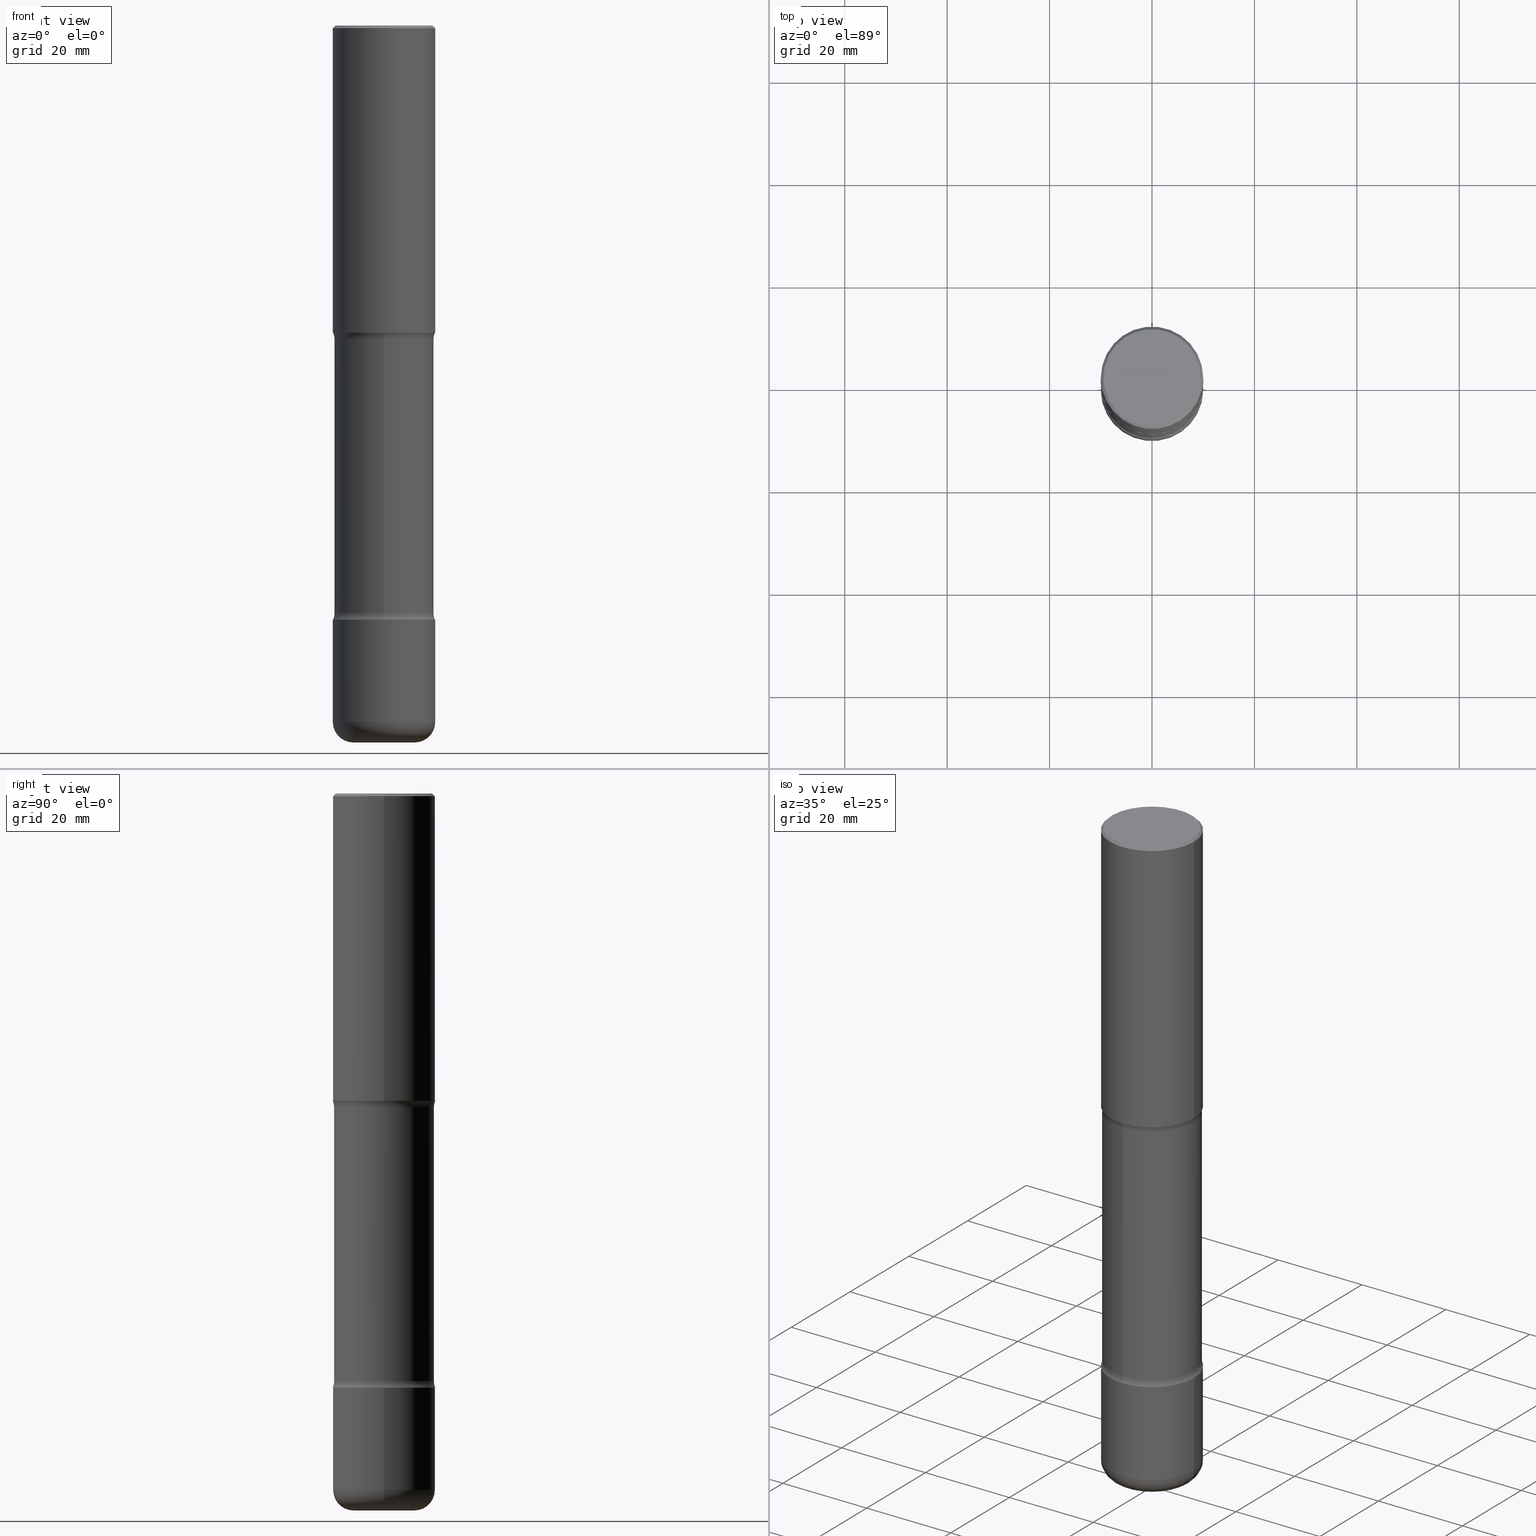
[diagram: canonical four-view strip — front | top / right | iso, engineering-drawing reading convention]
A machine part, canonical four-view strip (front | top / right | iso — engineering-drawing reading convention). The complete STEP part file that produces these views, byte-faithful:
ISO-10303-21;
HEADER;
FILE_DESCRIPTION (( 'STEP AP203' ),
    '1' );
FILE_NAME ('46840.STEP',
    '2024-03-02T05:50:54',
    ( '' ),
    ( '' ),
    'SwSTEP 2.0',
    'SolidWorks 2023',
    '' );
FILE_SCHEMA (( 'CONFIG_CONTROL_DESIGN' ));
ENDSEC;

DATA;
#1 = AXIS2_PLACEMENT_3D ( 'NONE', #249, #391, #31 ) ;
#2 = SECURITY_CLASSIFICATION ( '', '', #503 ) ;
#3 = ORIENTED_EDGE ( 'NONE', *, *, #149, .T. ) ;
#4 = EDGE_CURVE ( 'NONE', #308, #347, #443, .T. ) ;
#5 = DIRECTION ( 'NONE',  ( -2.438088387897960049E-29, 3.491481338843145188E-15, 1.000000000000000000 ) ) ;
#6 = ADVANCED_FACE ( 'NONE', ( #531 ), #315, .F. ) ;
#7 = AXIS2_PLACEMENT_3D ( 'NONE', #367, #325, #277 ) ;
#8 = ORIENTED_EDGE ( 'NONE', *, *, #165, .T. ) ;
#9 = DIRECTION ( 'NONE',  ( 6.982962677686265922E-15, 1.000000000000000000, -2.775563112689113540E-15 ) ) ;
#10 = DIRECTION ( 'NONE',  ( -1.000000000000000000, 6.982962677686265922E-15, -4.876176775795935793E-29 ) ) ;
#11 = ORIENTED_EDGE ( 'NONE', *, *, #24, .T. ) ;
#12 = DESIGN_CONTEXT ( 'detailed design', #429, 'design' ) ;
#13 = VECTOR ( 'NONE', #431, 39.37007874015748143 ) ;
#14 = CARTESIAN_POINT ( 'NONE',  ( 1.104200435858908498E-28, -1.578010528209585513E-14, -4.517443352317408234 ) ) ;
#16 = VERTEX_POINT ( 'NONE', #489 ) ;
#15 = CIRCLE ( 'NONE', #202, 0.3835000000000000075 ) ;
#17 = APPROVAL_PERSON_ORGANIZATION ( #276, #254, #366 ) ;
#18 = APPROVAL_DATE_TIME ( #497, #64 ) ;
#19 = DIRECTION ( 'NONE',  ( -1.000000000000000000, 6.982962677686265922E-15, 0.000000000000000000 ) ) ;
#20 = FACE_OUTER_BOUND ( 'NONE', #381, .T. ) ;
#21 = PRODUCT ( '46840', '46840', '', ( #332 ) ) ;
#22 = DIRECTION ( 'NONE',  ( -2.445468806185136597E-29, 3.491481338843145583E-15, 1.000000000000000000 ) ) ;
#23 = DIRECTION ( 'NONE',  ( -6.982962677686264344E-15, -1.000000000000000000, 0.000000000000000000 ) ) ;
#24 = EDGE_CURVE ( 'NONE', #440, #190, #467, .T. ) ;
#25 = AXIS2_PLACEMENT_3D ( 'NONE', #121, #198, #510 ) ;
#26 = APPROVAL_ROLE ( '' ) ;
#27 = FACE_OUTER_BOUND ( 'NONE', #521, .T. ) ;
#28 = DIRECTION ( 'NONE',  ( 6.982962677686265133E-15, 1.000000000000000000, -2.849385130288669478E-15 ) ) ;
#29 = CARTESIAN_POINT ( 'NONE',  ( -2.665989521933906951E-15, -0.3835000000000157727, -4.517443352317407346 ) ) ;
#30 = ORIENTED_EDGE ( 'NONE', *, *, #473, .T. ) ;
#31 = DIRECTION ( 'NONE',  ( 6.982962677686265133E-15, 1.000000000000000000, -3.339103073195795043E-15 ) ) ;
#32 = CIRCLE ( 'NONE', #212, 0.3835000000000000075 ) ;
#33 = CARTESIAN_POINT ( 'NONE',  ( -0.3937000000000001054, 2.797406750687515181E-15, -1.936584745033357016E-29 ) ) ;
#34 = EDGE_LOOP ( 'NONE', ( #396, #486 ) ) ;
#35 = DIRECTION ( 'NONE',  ( -2.445468806185136597E-29, 3.491481338843145583E-15, 1.000000000000000000 ) ) ;
#36 = ORIENTED_EDGE ( 'NONE', *, *, #143, .T. ) ;
#37 = CYLINDRICAL_SURFACE ( 'NONE', #86, 0.3937000000000001054 ) ;
#38 = VERTEX_POINT ( 'NONE', #317 ) ;
#39 = AXIS2_PLACEMENT_3D ( 'NONE', #117, #554, #241 ) ;
#40 = AXIS2_PLACEMENT_3D ( 'NONE', #286, #493, #69 ) ;
#41 = DIRECTION ( 'NONE',  ( 1.000000000000000000, -6.982962677686266711E-15, 4.876212485538975679E-29 ) ) ;
#42 = CARTESIAN_POINT ( 'NONE',  ( -2.087702828670439639E-46, 2.980686340760894400E-32, 8.537024980200822558E-18 ) ) ;
#43 = EDGE_CURVE ( 'NONE', #125, #156, #192, .T. ) ;
#44 = DIRECTION ( 'NONE',  ( 2.551873980375737716E-29, -3.339103073195795043E-15, -1.000000000000000000 ) ) ;
#45 = EDGE_CURVE ( 'NONE', #278, #451, #476, .T. ) ;
#46 = DIRECTION ( 'NONE',  ( 1.000000000000000000, -6.982962677686265922E-15, 4.876176775795935793E-29 ) ) ;
#47 = VECTOR ( 'NONE', #191, 39.37007874015748143 ) ;
#48 = ORIENTED_EDGE ( 'NONE', *, *, #345, .F. ) ;
#49 = AXIS2_PLACEMENT_3D ( 'NONE', #158, #342, #269 ) ;
#50 = ORIENTED_EDGE ( 'NONE', *, *, #223, .T. ) ;
#51 = DIRECTION ( 'NONE',  ( -1.000000000000000000, 6.982962677686265922E-15, -4.883557194083112340E-29 ) ) ;
#52 = PERSON_AND_ORGANIZATION ( #515, #282 ) ;
#53 = DIRECTION ( 'NONE',  ( 2.551873980375737716E-29, -3.339103073195795043E-15, -1.000000000000000000 ) ) ;
#54 = ORIENTED_EDGE ( 'NONE', *, *, #360, .F. ) ;
#55 = APPROVAL_STATUS ( 'not_yet_approved' ) ;
#56 = AXIS2_PLACEMENT_3D ( 'NONE', #91, #224, #401 ) ;
#57 = DIRECTION ( 'NONE',  ( 6.982962677686265922E-15, 1.000000000000000000, -2.849385130288670661E-15 ) ) ;
#59 = DIRECTION ( 'NONE',  ( -0.7071067811865469066, 2.468850131082250355E-15, -0.7071067811865481278 ) ) ;
#58 = CIRCLE ( 'NONE', #390, 0.3835000000000002851 ) ;
#60 = AXIS2_PLACEMENT_3D ( 'NONE', #487, #392, #268 ) ;
#61 = SHAPE_DEFINITION_REPRESENTATION ( #327, #400 ) ;
#62 = DIRECTION ( 'NONE',  ( 1.000000000000000000, -6.982962677686266711E-15, 4.876176775795935793E-29 ) ) ;
#63 = LINE ( 'NONE', #465, #460 ) ;
#64 = APPROVAL ( #508, 'UNSPECIFIED' ) ;
#65 = CARTESIAN_POINT ( 'NONE',  ( 1.309377362895707575E-28, -1.869443853256785386E-14, -5.354300000000000281 ) ) ;
#66 = ADVANCED_FACE ( 'NONE', ( #357 ), #409, .F. ) ;
#67 = PERSON_AND_ORGANIZATION_ROLE ( 'design_supplier' ) ;
#68 = FACE_OUTER_BOUND ( 'NONE', #275, .T. ) ;
#69 = DIRECTION ( 'NONE',  ( 1.000000000000000000, -6.982962677686272233E-15, 0.000000000000000000 ) ) ;
#70 = DIRECTION ( 'NONE',  ( 6.982962677686265922E-15, 1.000000000000000000, -2.775563112689113540E-15 ) ) ;
#71 = APPLICATION_PROTOCOL_DEFINITION ( 'international standard', 'config_control_design', 1994, #429 ) ;
#72 = FACE_OUTER_BOUND ( 'NONE', #449, .T. ) ;
#73 = AXIS2_PLACEMENT_3D ( 'NONE', #42, #175, #395 ) ;
#74 = CIRCLE ( 'NONE', #506, 0.3937000000000000499 ) ;
#75 = FACE_OUTER_BOUND ( 'NONE', #559, .T. ) ;
#76 = CARTESIAN_POINT ( 'NONE',  ( 0.3937000000000000499, -2.770807688499515734E-15, -0.02000000000000008715 ) ) ;
#77 = CARTESIAN_POINT ( 'NONE',  ( 4.890937612370294178E-31, -6.982962677686321191E-17, -0.02000000000000008715 ) ) ;
#78 = ORIENTED_EDGE ( 'NONE', *, *, #239, .F. ) ;
#79 = AXIS2_PLACEMENT_3D ( 'NONE', #408, #404, #10 ) ;
#80 = LINE ( 'NONE', #383, #13 ) ;
#81 = ORIENTED_EDGE ( 'NONE', *, *, #4, .F. ) ;
#82 = ADVANCED_FACE ( 'NONE', ( #319 ), #92, .F. ) ;
#83 = EDGE_CURVE ( 'NONE', #451, #533, #273, .T. ) ;
#84 = ORIENTED_EDGE ( 'NONE', *, *, #267, .T. ) ;
#85 = AXIS2_PLACEMENT_3D ( 'NONE', #514, #115, #545 ) ;
#86 = AXIS2_PLACEMENT_3D ( 'NONE', #448, #179, #62 ) ;
#87 = CARTESIAN_POINT ( 'NONE',  ( 0.000000000000000000, 0.000000000000000000, 0.000000000000000000 ) ) ;
#88 = VERTEX_POINT ( 'NONE', #516 ) ;
#89 = EDGE_LOOP ( 'NONE', ( #560, #299 ) ) ;
#90 = PRODUCT_RELATED_PRODUCT_CATEGORY ( 'detail', '', ( #21 ) ) ;
#91 = CARTESIAN_POINT ( 'NONE',  ( -0.2362000000000005484, -1.701613659070249273E-14, -5.354300000000000281 ) ) ;
#92 = TOROIDAL_SURFACE ( 'NONE', #352, 0.5085000000000003961, 0.1250000000000001110 ) ;
#93 = CARTESIAN_POINT ( 'NONE',  ( 0.3937000000000001054, -2.749192406205084005E-15, 1.919750796630860452E-29 ) ) ;
#94 = CIRCLE ( 'NONE', #281, 0.3937000000000004940 ) ;
#95 = DIRECTION ( 'NONE',  ( -2.445468806185136597E-29, 3.491481338843145583E-15, 1.000000000000000000 ) ) ;
#96 = ORIENTED_EDGE ( 'NONE', *, *, #143, .F. ) ;
#97 = EDGE_CURVE ( 'NONE', #161, #533, #167, .T. ) ;
#98 = DIRECTION ( 'NONE',  ( 2.551873980375737716E-29, -3.339103073195795043E-15, -1.000000000000000000 ) ) ;
#99 = ORIENTED_EDGE ( 'NONE', *, *, #171, .T. ) ;
#100 = ORIENTED_EDGE ( 'NONE', *, *, #473, .F. ) ;
#101 = COORDINATED_UNIVERSAL_TIME_OFFSET ( 5, 0, .BEHIND. ) ;
#102 = CARTESIAN_POINT ( 'NONE',  ( 2.749192406205143170E-15, 0.3936999999999921673, -2.362200000000001854 ) ) ;
#103 = DATE_TIME_ROLE ( 'classification_date' ) ;
#104 = CLOSED_SHELL ( 'NONE', ( #491, #244, #124, #82, #6, #291, #414, #204 ) ) ;
#105 = ORIENTED_EDGE ( 'NONE', *, *, #382, .F. ) ;
#106 = AXIS2_PLACEMENT_3D ( 'NONE', #338, #517, #41 ) ;
#107 =( GEOMETRIC_REPRESENTATION_CONTEXT ( 3 ) GLOBAL_UNCERTAINTY_ASSIGNED_CONTEXT ( ( #490 ) ) GLOBAL_UNIT_ASSIGNED_CONTEXT ( ( #334, #368, #255 ) ) REPRESENTATION_CONTEXT ( 'NONE', 'WORKASPACE' ) );
#108 = PERSON_AND_ORGANIZATION ( #515, #282 ) ;
#109 = CARTESIAN_POINT ( 'NONE',  ( 1.309377362895707575E-28, -1.869443853256785386E-14, -5.354300000000000281 ) ) ;
#110 = DATE_AND_TIME ( #543, #311 ) ;
#111 = MANIFOLD_SOLID_BREP ( 'Body-Move/Copy2[1]', #292 ) ;
#112 = AXIS2_PLACEMENT_3D ( 'NONE', #153, #283, #426 ) ;
#113 = CIRCLE ( 'NONE', #445, 0.3835000000000002851 ) ;
#114 = DIRECTION ( 'NONE',  ( 1.000000000000000000, -6.982962677686266711E-15, 4.876176775795935793E-29 ) ) ;
#115 = DIRECTION ( 'NONE',  ( -2.445468806185136597E-29, 3.491481338843145583E-15, 1.000000000000000000 ) ) ;
#116 = EDGE_CURVE ( 'NONE', #347, #405, #520, .T. ) ;
#117 = CARTESIAN_POINT ( 'NONE',  ( 5.659176195875929184E-29, -8.761735180288824400E-15, -2.411656647682593135 ) ) ;
#118 = EDGE_LOOP ( 'NONE', ( #96, #100, #220, #293 ) ) ;
#119 = EDGE_LOOP ( 'NONE', ( #78, #84, #135, #105 ) ) ;
#120 = AXIS2_PLACEMENT_3D ( 'NONE', #450, #44, #9 ) ;
#121 = CARTESIAN_POINT ( 'NONE',  ( -3.488563231866714142E-15, -0.5085000000000159392, -4.517443352317407346 ) ) ;
#122 = ORIENTED_EDGE ( 'NONE', *, *, #187, .F. ) ;
#123 = ORIENTED_EDGE ( 'NONE', *, *, #206, .F. ) ;
#124 = ADVANCED_FACE ( 'NONE', ( #413 ), #257, .F. ) ;
#125 = VERTEX_POINT ( 'NONE', #551 ) ;
#126 = AXIS2_PLACEMENT_3D ( 'NONE', #363, #266, #170 ) ;
#127 = CARTESIAN_POINT ( 'NONE',  ( 2.609533152651357409E-15, 0.3736999999999999766, -1.300498063835583011E-15 ) ) ;
#128 = VECTOR ( 'NONE', #250, 39.37007874015748143 ) ;
#129 = APPROVAL_PERSON_ORGANIZATION ( #411, #64, #456 ) ;
#130 = ORIENTED_EDGE ( 'NONE', *, *, #116, .F. ) ;
#131 = ADVANCED_FACE ( 'NONE', ( #328 ), #301, .T. ) ;
#132 = EDGE_LOOP ( 'NONE', ( #123, #394, #527, #494 ) ) ;
#133 = CARTESIAN_POINT ( 'NONE',  ( 5.668302058810330557E-29, -8.748666425154899227E-15, -2.411656647682593135 ) ) ;
#134 = DIRECTION ( 'NONE',  ( 6.982962677686265133E-15, 1.000000000000000000, -3.339103073195795043E-15 ) ) ;
#135 = ORIENTED_EDGE ( 'NONE', *, *, #351, .T. ) ;
#136 = CIRCLE ( 'NONE', #484, 0.2362000000000005762 ) ;
#137 = DIRECTION ( 'NONE',  ( 1.000000000000000000, -6.982962677686265922E-15, 0.000000000000000000 ) ) ;
#138 = CARTESIAN_POINT ( 'NONE',  ( 0.3937000000000004940, -2.749192406205086766E-15, 1.919750796630862414E-29 ) ) ;
#139 = COORDINATED_UNIVERSAL_TIME_OFFSET ( 5, 0, .BEHIND. ) ;
#140 = CARTESIAN_POINT ( 'NONE',  ( 1.116821149096690103E-28, -1.594524612636276117E-14, -4.566900000000000404 ) ) ;
#141 = PERSON_AND_ORGANIZATION_ROLE ( 'creator' ) ;
#142 = PERSON_AND_ORGANIZATION ( #515, #282 ) ;
#143 = EDGE_CURVE ( 'NONE', #252, #88, #420, .T. ) ;
#144 = CARTESIAN_POINT ( 'NONE',  ( 4.890937612370294178E-31, -6.982962677686321191E-17, -0.02000000000000008715 ) ) ;
#145 = AXIS2_PLACEMENT_3D ( 'NONE', #127, #162, #482 ) ;
#146 = LOCAL_TIME ( 0, 50, 54.00000000000000000, #326 ) ;
#147 = DATE_AND_TIME ( #234, #213 ) ;
#148 = VERTEX_POINT ( 'NONE', #76 ) ;
#149 = EDGE_CURVE ( 'NONE', #156, #161, #80, .T. ) ;
#150 = CARTESIAN_POINT ( 'NONE',  ( -0.3937000000000004385, -1.452243557877779036E-14, -4.566900000000000404 ) ) ;
#151 = AXIS2_PLACEMENT_3D ( 'NONE', #246, #349, #428 ) ;
#152 = DIMENSIONAL_EXPONENTS ( 1.000000000000000000, 0.000000000000000000, 0.000000000000000000, 0.000000000000000000, 0.000000000000000000, 0.000000000000000000, 0.000000000000000000 ) ;
#153 = CARTESIAN_POINT ( 'NONE',  ( -3.488563231866769362E-15, -0.5085000000000091669, -2.411656647682591359 ) ) ;
#154 = DIRECTION ( 'NONE',  ( 6.982962677686265133E-15, 1.000000000000000000, -2.849385130288669478E-15 ) ) ;
#155 = ORIENTED_EDGE ( 'NONE', *, *, #265, .F. ) ;
#156 = VERTEX_POINT ( 'NONE', #295 ) ;
#157 = EDGE_CURVE ( 'NONE', #38, #405, #195, .T. ) ;
#158 = CARTESIAN_POINT ( 'NONE',  ( 1.309377362895707575E-28, -1.869443853256785386E-14, -5.354300000000000281 ) ) ;
#159 = AXIS2_PLACEMENT_3D ( 'NONE', #505, #22, #114 ) ;
#160 = CONICAL_SURFACE ( 'NONE', #552, 0.3937000000000000499, 0.7853981633974473908 ) ;
#161 = VERTEX_POINT ( 'NONE', #150 ) ;
#162 = DIRECTION ( 'NONE',  ( 2.438088387897960049E-29, -3.491481338843145188E-15, -1.000000000000000000 ) ) ;
#163 = CYLINDRICAL_SURFACE ( 'NONE', #194, 0.3937000000000004940 ) ;
#164 = VERTEX_POINT ( 'NONE', #29 ) ;
#165 = EDGE_CURVE ( 'NONE', #308, #148, #207, .T. ) ;
#166 = ORIENTED_EDGE ( 'NONE', *, *, #206, .T. ) ;
#167 = CIRCLE ( 'NONE', #85, 0.3937000000000004385 ) ;
#168 = AXIS2_PLACEMENT_3D ( 'NONE', #418, #51, #23 ) ;
#169 = CC_DESIGN_APPROVAL ( #288, ( #2 ) ) ;
#170 = DIRECTION ( 'NONE',  ( 6.982962677686265922E-15, 1.000000000000000000, -3.339103073195795043E-15 ) ) ;
#171 = EDGE_CURVE ( 'NONE', #533, #161, #398, .T. ) ;
#172 = ADVANCED_FACE ( 'NONE', ( #378 ), #193, .T. ) ;
#173 = CARTESIAN_POINT ( 'NONE',  ( 0.2362000000000005484, -2.034381431703735669E-14, -5.354300000000000281 ) ) ;
#174 = ORIENTED_EDGE ( 'NONE', *, *, #504, .F. ) ;
#175 = DIRECTION ( 'NONE',  ( -2.445468806185136597E-29, 3.491481338843145583E-15, 1.000000000000000000 ) ) ;
#176 = VECTOR ( 'NONE', #59, 39.37007874015748143 ) ;
#177 = APPROVAL_DATE_TIME ( #110, #254 ) ;
#178 = CIRCLE ( 'NONE', #106, 0.3736999999999999766 ) ;
#179 = DIRECTION ( 'NONE',  ( -2.445468806185136597E-29, 3.491481338843145583E-15, 1.000000000000000000 ) ) ;
#180 = AXIS2_PLACEMENT_3D ( 'NONE', #309, #380, #154 ) ;
#181 = DIRECTION ( 'NONE',  ( -2.445468806185136597E-29, 3.491481338843145583E-15, 1.000000000000000000 ) ) ;
#182 = LOCAL_TIME ( 0, 50, 54.00000000000000000, #101 ) ;
#183 = VERTEX_POINT ( 'NONE', #199 ) ;
#184 = PERSON_AND_ORGANIZATION_ROLE ( 'classification_officer' ) ;
#185 = CARTESIAN_POINT ( 'NONE',  ( 5.776686413970530874E-29, -8.247577218615279626E-15, -2.362200000000000077 ) ) ;
#186 = PRODUCT_DEFINITION ( 'UNKNOWN', '', #362, #12 ) ;
#187 = EDGE_CURVE ( 'NONE', #405, #148, #468, .T. ) ;
#188 = PERSON_AND_ORGANIZATION ( #515, #282 ) ;
#189 = CARTESIAN_POINT ( 'NONE',  ( 2.677966186892741486E-15, 0.3834999999999915699, -2.411656647682594468 ) ) ;
#190 = VERTEX_POINT ( 'NONE', #302 ) ;
#191 = DIRECTION ( 'NONE',  ( -2.445468806185136877E-29, 3.491481338843145188E-15, 1.000000000000000000 ) ) ;
#192 = CIRCLE ( 'NONE', #56, 0.1574999999999992795 ) ;
#193 = TOROIDAL_SURFACE ( 'NONE', #495, 0.2362000000000005484, 0.1574999999999992517 ) ;
#194 = AXIS2_PLACEMENT_3D ( 'NONE', #87, #399, #386 ) ;
#195 = LINE ( 'NONE', #33, #247 ) ;
#196 = DIRECTION ( 'NONE',  ( -2.445468806185136597E-29, 3.491481338843145583E-15, 1.000000000000000000 ) ) ;
#197 = ORIENTED_EDGE ( 'NONE', *, *, #267, .F. ) ;
#198 = DIRECTION ( 'NONE',  ( 1.000000000000000000, -6.860497997771530774E-15, 4.842664975176989819E-29 ) ) ;
#199 = CARTESIAN_POINT ( 'NONE',  ( 2.677966186892793550E-15, 0.3834999999999842424, -4.517443352317409122 ) ) ;
#200 = ORIENTED_EDGE ( 'NONE', *, *, #239, .T. ) ;
#201 = DIRECTION ( 'NONE',  ( 2.551873980375737716E-29, -3.339103073195795043E-15, -1.000000000000000000 ) ) ;
#202 = AXIS2_PLACEMENT_3D ( 'NONE', #549, #475, #553 ) ;
#203 = CC_DESIGN_PERSON_AND_ORGANIZATION_ASSIGNMENT ( #52, #141, ( #186 ) ) ;
#204 = ADVANCED_FACE ( 'NONE', ( #526 ), #375, .T. ) ;
#205 = CC_DESIGN_SECURITY_CLASSIFICATION ( #2, ( #362 ) ) ;
#206 = EDGE_CURVE ( 'NONE', #252, #164, #483, .T. ) ;
#207 = LINE ( 'NONE', #558, #128 ) ;
#208 = EDGE_LOOP ( 'NONE', ( #350, #36, #479, #48 ) ) ;
#209 = DIRECTION ( 'NONE',  ( 1.000000000000000000, -6.982962677686270655E-15, 0.000000000000000000 ) ) ;
#210 = ORIENTED_EDGE ( 'NONE', *, *, #43, .F. ) ;
#211 = AXIS2_PLACEMENT_3D ( 'NONE', #542, #534, #324 ) ;
#212 = AXIS2_PLACEMENT_3D ( 'NONE', #14, #98, #57 ) ;
#213 = LOCAL_TIME ( 0, 50, 54.00000000000000000, #285 ) ;
#214 = DIRECTION ( 'NONE',  ( 1.000000000000000000, -6.982962677686261977E-15, 4.883557194083110659E-29 ) ) ;
#215 = ORIENTED_EDGE ( 'NONE', *, *, #306, .F. ) ;
#216 = PLANE ( 'NONE',  #145 ) ;
#217 = FACE_OUTER_BOUND ( 'NONE', #34, .T. ) ;
#218 = ORIENTED_EDGE ( 'NONE', *, *, #43, .T. ) ;
#219 = ORIENTED_EDGE ( 'NONE', *, *, #306, .T. ) ;
#220 = ORIENTED_EDGE ( 'NONE', *, *, #345, .T. ) ;
#221 = CC_DESIGN_DATE_AND_TIME_ASSIGNMENT ( #147, #103, ( #2 ) ) ;
#222 = AXIS2_PLACEMENT_3D ( 'NONE', #173, #454, #230 ) ;
#223 = EDGE_CURVE ( 'NONE', #347, #308, #178, .T. ) ;
#224 = DIRECTION ( 'NONE',  ( 7.105427357601001859E-15, 1.000000000000000000, -3.491481338843145583E-15 ) ) ;
#225 = PLANE ( 'NONE',  #79 ) ;
#226 = EDGE_LOOP ( 'NONE', ( #210, #481, #519, #477 ) ) ;
#227 = CARTESIAN_POINT ( 'NONE',  ( 0.000000000000000000, 0.000000000000000000, 0.000000000000000000 ) ) ;
#228 = FACE_OUTER_BOUND ( 'NONE', #119, .T. ) ;
#229 = CARTESIAN_POINT ( 'NONE',  ( 1.104726680180063437E-28, -1.577256916389725369E-14, -4.517443352317409122 ) ) ;
#230 = DIRECTION ( 'NONE',  ( 1.000000000000000000, -6.982962677686269077E-15, 0.000000000000000000 ) ) ;
#231 = DATE_TIME_ROLE ( 'creation_date' ) ;
#232 = AXIS2_PLACEMENT_3D ( 'NONE', #425, #512, #28 ) ;
#233 = DIRECTION ( 'NONE',  ( -2.445468806185136597E-29, 3.491481338843145583E-15, 1.000000000000000000 ) ) ;
#234 = CALENDAR_DATE ( 2024, 2, 3 ) ;
#235 = DIRECTION ( 'NONE',  ( 2.551873980375737716E-29, -3.339103073195795043E-15, -1.000000000000000000 ) ) ;
#236 = ORIENTED_EDGE ( 'NONE', *, *, #511, .T. ) ;
#237 = CARTESIAN_POINT ( 'NONE',  ( 4.890937612370294178E-31, -6.982962677686321191E-17, -0.02000000000000008715 ) ) ;
#238 = CARTESIAN_POINT ( 'NONE',  ( 1.347893496593123422E-28, -1.924434684343564562E-14, -5.511799999999999145 ) ) ;
#239 = EDGE_CURVE ( 'NONE', #190, #440, #432, .T. ) ;
#240 = TOROIDAL_SURFACE ( 'NONE', #1, 0.5085000000000001741, 0.1249999999999999584 ) ;
#241 = DIRECTION ( 'NONE',  ( 6.982962677686265133E-15, 1.000000000000000000, -3.339103073195795043E-15 ) ) ;
#242 = CYLINDRICAL_SURFACE ( 'NONE', #372, 0.3937000000000001054 ) ;
#243 = DIRECTION ( 'NONE',  ( -2.445468806185136877E-29, 3.491481338843145188E-15, 1.000000000000000000 ) ) ;
#244 = ADVANCED_FACE ( 'NONE', ( #228 ), #240, .F. ) ;
#245 = FACE_OUTER_BOUND ( 'NONE', #262, .T. ) ;
#246 = CARTESIAN_POINT ( 'NONE',  ( 4.890937612370294178E-31, -6.982962677686321191E-17, -0.02000000000000008715 ) ) ;
#247 = VECTOR ( 'NONE', #243, 39.37007874015748143 ) ;
#248 = TOROIDAL_SURFACE ( 'NONE', #548, 0.5085000000000001741, 0.1249999999999999584 ) ;
#249 = CARTESIAN_POINT ( 'NONE',  ( 1.104726680180063437E-28, -1.577256916389725369E-14, -4.517443352317409122 ) ) ;
#250 = DIRECTION ( 'NONE',  ( 0.7071067811865469066, -7.319954787623254468E-15, -0.7071067811865481278 ) ) ;
#251 = ORIENTED_EDGE ( 'NONE', *, *, #223, .F. ) ;
#252 = VERTEX_POINT ( 'NONE', #556 ) ;
#253 = ORIENTED_EDGE ( 'NONE', *, *, #360, .T. ) ;
#254 = APPROVAL ( #538, 'UNSPECIFIED' ) ;
#255 =( NAMED_UNIT ( * ) SI_UNIT ( $, .STERADIAN. ) SOLID_ANGLE_UNIT ( ) );
#256 = FACE_OUTER_BOUND ( 'NONE', #470, .T. ) ;
#258 = ORIENTED_EDGE ( 'NONE', *, *, #83, .F. ) ;
#257 = TOROIDAL_SURFACE ( 'NONE', #39, 0.5085000000000003961, 0.1250000000000001110 ) ;
#259 = AXIS2_PLACEMENT_3D ( 'NONE', #346, #436, #340 ) ;
#260 = AXIS2_PLACEMENT_3D ( 'NONE', #227, #284, #518 ) ;
#261 = CARTESIAN_POINT ( 'NONE',  ( 5.668302058810330557E-29, -8.748666425154899227E-15, -2.411656647682593135 ) ) ;
#262 = EDGE_LOOP ( 'NONE', ( #469, #335, #337, #122 ) ) ;
#263 = DIRECTION ( 'NONE',  ( 1.000000000000000000, -6.982962677686266711E-15, 4.876176775795935793E-29 ) ) ;
#264 = CC_DESIGN_DATE_AND_TIME_ASSIGNMENT ( #462, #231, ( #186 ) ) ;
#265 = EDGE_CURVE ( 'NONE', #88, #355, #344, .T. ) ;
#266 = DIRECTION ( 'NONE',  ( 2.551873980375737156E-29, -3.339103073195795043E-15, -1.000000000000000000 ) ) ;
#267 = EDGE_CURVE ( 'NONE', #190, #164, #271, .T. ) ;
#268 = DIRECTION ( 'NONE',  ( 6.982962677686265922E-15, 1.000000000000000000, -3.469453890861389657E-15 ) ) ;
#269 = DIRECTION ( 'NONE',  ( 1.000000000000000000, -6.982962677686269866E-15, 0.000000000000000000 ) ) ;
#270 = ORIENTED_EDGE ( 'NONE', *, *, #187, .T. ) ;
#271 = CIRCLE ( 'NONE', #25, 0.1249999999999999584 ) ;
#272 = DIRECTION ( 'NONE',  ( 1.000000000000000000, -6.982962677686266711E-15, 0.000000000000000000 ) ) ;
#273 = LINE ( 'NONE', #138, #430 ) ;
#274 = DIRECTION ( 'NONE',  ( -6.982962677686265133E-15, -1.000000000000000000, 0.000000000000000000 ) ) ;
#275 = EDGE_LOOP ( 'NONE', ( #525, #251, #455, #270 ) ) ;
#276 = PERSON_AND_ORGANIZATION ( #515, #282 ) ;
#277 = DIRECTION ( 'NONE',  ( -6.982962677686265922E-15, -1.000000000000000000, 3.339103073195795043E-15 ) ) ;
#278 = VERTEX_POINT ( 'NONE', #424 ) ;
#279 = APPLICATION_CONTEXT ( 'configuration controlled 3d designs of mechanical parts and assemblies' ) ;
#280 = PERSON_AND_ORGANIZATION ( #515, #282 ) ;
#281 = AXIS2_PLACEMENT_3D ( 'NONE', #109, #181, #453 ) ;
#282 = ORGANIZATION ( 'UNSPECIFIED', 'UNSPECIFIED', '' ) ;
#283 = DIRECTION ( 'NONE',  ( 1.000000000000000000, -6.860497997771530774E-15, 4.842664975176989819E-29 ) ) ;
#284 = DIRECTION ( 'NONE',  ( 0.000000000000000000, 0.000000000000000000, 1.000000000000000000 ) ) ;
#285 = COORDINATED_UNIVERSAL_TIME_OFFSET ( 5, 0, .BEHIND. ) ;
#286 = CARTESIAN_POINT ( 'NONE',  ( 1.347893496593123422E-28, -1.924434684343564562E-14, -5.511799999999999145 ) ) ;
#287 = EDGE_LOOP ( 'NONE', ( #99, #485 ) ) ;
#288 = APPROVAL ( #55, 'UNSPECIFIED' ) ;
#289 = ADVANCED_FACE ( 'NONE', ( #27 ), #216, .F. ) ;
#290 = COORDINATED_UNIVERSAL_TIME_OFFSET ( 5, 0, .BEHIND. ) ;
#291 = ADVANCED_FACE ( 'NONE', ( #544 ), #463, .F. ) ;
#292 = CLOSED_SHELL ( 'NONE', ( #550, #172, #416, #437, #131, #66 ) ) ;
#293 = ORIENTED_EDGE ( 'NONE', *, *, #504, .T. ) ;
#294 = CIRCLE ( 'NONE', #40, 0.2362000000000005762 ) ;
#295 = CARTESIAN_POINT ( 'NONE',  ( -0.3937000000000001609, -1.589703178188033670E-14, -5.354300000000000281 ) ) ;
#296 = DIRECTION ( 'NONE',  ( 1.000000000000000000, -6.982962677686261977E-15, 4.883557194083110659E-29 ) ) ;
#297 = FACE_OUTER_BOUND ( 'NONE', #446, .T. ) ;
#298 = EDGE_CURVE ( 'NONE', #353, #183, #63, .T. ) ;
#299 = ORIENTED_EDGE ( 'NONE', *, *, #403, .F. ) ;
#300 = DIRECTION ( 'NONE',  ( 2.445468806185136597E-29, -3.491481338843145583E-15, -1.000000000000000000 ) ) ;
#301 = CYLINDRICAL_SURFACE ( 'NONE', #159, 0.3937000000000004940 ) ;
#302 = CARTESIAN_POINT ( 'NONE',  ( -2.700978061722541995E-15, -0.3937000000000162037, -4.566899999999999515 ) ) ;
#303 = VECTOR ( 'NONE', #201, 39.37007874015748143 ) ;
#304 = ORIENTED_EDGE ( 'NONE', *, *, #149, .F. ) ;
#305 = ORIENTED_EDGE ( 'NONE', *, *, #83, .T. ) ;
#306 = EDGE_CURVE ( 'NONE', #451, #156, #94, .T. ) ;
#307 = DIRECTION ( 'NONE',  ( -2.445468806185136597E-29, 3.491481338843145583E-15, 1.000000000000000000 ) ) ;
#308 = VERTEX_POINT ( 'NONE', #535 ) ;
#309 = CARTESIAN_POINT ( 'NONE',  ( 1.357947721502393649E-28, -1.910036462022546845E-14, -5.511800000000000033 ) ) ;
#310 = ORIENTED_EDGE ( 'NONE', *, *, #157, .T. ) ;
#311 = LOCAL_TIME ( 0, 50, 54.00000000000000000, #139 ) ;
#312 = CARTESIAN_POINT ( 'NONE',  ( 5.776686413970530874E-29, -8.247577218615279626E-15, -2.362200000000000077 ) ) ;
#313 = CC_DESIGN_PERSON_AND_ORGANIZATION_ASSIGNMENT ( #142, #322, ( #21 ) ) ;
#314 = EDGE_CURVE ( 'NONE', #16, #38, #530, .T. ) ;
#315 = PLANE ( 'NONE',  #126 ) ;
#316 = DIRECTION ( 'NONE',  ( 6.982962677686265133E-15, 1.000000000000000000, -3.561731412860835763E-15 ) ) ;
#317 = CARTESIAN_POINT ( 'NONE',  ( -0.3937000000000002720, -1.361296672008554112E-15, -2.362200000000000077 ) ) ;
#318 = CARTESIAN_POINT ( 'NONE',  ( 3.550836521603578467E-15, 0.5084999999999844089, -4.517443352317410010 ) ) ;
#319 = FACE_OUTER_BOUND ( 'NONE', #118, .T. ) ;
#320 = AXIS2_PLACEMENT_3D ( 'NONE', #540, #458, #501 ) ;
#321 = CC_DESIGN_APPROVAL ( #254, ( #186 ) ) ;
#322 = PERSON_AND_ORGANIZATION_ROLE ( 'design_owner' ) ;
#323 = CARTESIAN_POINT ( 'NONE',  ( 2.749192406205196813E-15, 0.3936999999999843958, -4.566900000000001292 ) ) ;
#324 = DIRECTION ( 'NONE',  ( -1.000000000000000000, 6.982962677686265922E-15, -4.876176775795935793E-29 ) ) ;
#325 = DIRECTION ( 'NONE',  ( -2.551873980375737156E-29, 3.339103073195795043E-15, 1.000000000000000000 ) ) ;
#326 = COORDINATED_UNIVERSAL_TIME_OFFSET ( 5, 0, .BEHIND. ) ;
#327 = PRODUCT_DEFINITION_SHAPE ( 'NONE', 'NONE',  #186 ) ;
#328 = FACE_OUTER_BOUND ( 'NONE', #439, .T. ) ;
#329 = AXIS2_PLACEMENT_3D ( 'NONE', #185, #95, #272 ) ;
#330 = CC_DESIGN_PERSON_AND_ORGANIZATION_ASSIGNMENT ( #108, #184, ( #2 ) ) ;
#331 = DIRECTION ( 'NONE',  ( -1.000000000000000000, 6.982962677686265922E-15, -4.883557194083112340E-29 ) ) ;
#332 = MECHANICAL_CONTEXT ( 'NONE', #279, 'mechanical' ) ;
#333 = CARTESIAN_POINT ( 'NONE',  ( 0.000000000000000000, 0.000000000000000000, 0.000000000000000000 ) ) ;
#334 =( CONVERSION_BASED_UNIT ( 'INCH', #524 ) LENGTH_UNIT ( ) NAMED_UNIT ( #152 ) );
#335 = ORIENTED_EDGE ( 'NONE', *, *, #415, .T. ) ;
#336 = DIRECTION ( 'NONE',  ( -2.445468806185136877E-29, 3.491481338843145188E-15, 1.000000000000000000 ) ) ;
#337 = ORIENTED_EDGE ( 'NONE', *, *, #459, .T. ) ;
#338 = CARTESIAN_POINT ( 'NONE',  ( -2.087702828670439639E-46, 2.980686340760894400E-32, 8.537024980200822558E-18 ) ) ;
#339 = ORIENTED_EDGE ( 'NONE', *, *, #314, .T. ) ;
#340 = DIRECTION ( 'NONE',  ( 6.982962677686265922E-15, 1.000000000000000000, -3.469453890861389657E-15 ) ) ;
#341 = CARTESIAN_POINT ( 'NONE',  ( -2.631000982145247058E-15, -0.3835000000000192699, -5.511799999999999145 ) ) ;
#342 = DIRECTION ( 'NONE',  ( -2.445468806185136597E-29, 3.491481338843145583E-15, 1.000000000000000000 ) ) ;
#343 = ORIENTED_EDGE ( 'NONE', *, *, #298, .F. ) ;
#344 = CIRCLE ( 'NONE', #259, 0.3937000000000007160 ) ;
#345 = EDGE_CURVE ( 'NONE', #353, #355, #422, .T. ) ;
#346 = CARTESIAN_POINT ( 'NONE',  ( 5.542094926432512266E-29, -8.583525580887993185E-15, -2.362200000000000077 ) ) ;
#347 = VERTEX_POINT ( 'NONE', #547 ) ;
#348 = APPLICATION_PROTOCOL_DEFINITION ( 'international standard', 'config_control_design', 1994, #279 ) ;
#349 = DIRECTION ( 'NONE',  ( -2.445468806185136597E-29, 3.491481338843145583E-15, 1.000000000000000000 ) ) ;
#350 = ORIENTED_EDGE ( 'NONE', *, *, #502, .F. ) ;
#351 = EDGE_CURVE ( 'NONE', #164, #183, #32, .T. ) ;
#353 = VERTEX_POINT ( 'NONE', #189 ) ;
#352 = AXIS2_PLACEMENT_3D ( 'NONE', #359, #406, #536 ) ;
#354 = AXIS2_PLACEMENT_3D ( 'NONE', #438, #35, #209 ) ;
#355 = VERTEX_POINT ( 'NONE', #102 ) ;
#356 = CARTESIAN_POINT ( 'NONE',  ( -0.3937000000000000499, 2.679362779428219918E-15, -0.02000000000000008715 ) ) ;
#357 = FACE_OUTER_BOUND ( 'NONE', #287, .T. ) ;
#358 = FACE_OUTER_BOUND ( 'NONE', #226, .T. ) ;
#359 = CARTESIAN_POINT ( 'NONE',  ( 5.659176195875929184E-29, -8.761735180288824400E-15, -2.411656647682593135 ) ) ;
#360 = EDGE_CURVE ( 'NONE', #148, #405, #74, .T. ) ;
#361 = AXIS2_PLACEMENT_3D ( 'NONE', #471, #196, #296 ) ;
#362 = PRODUCT_DEFINITION_FORMATION_WITH_SPECIFIED_SOURCE ( 'ANY', '', #21, .NOT_KNOWN. ) ;
#363 = CARTESIAN_POINT ( 'NONE',  ( 5.776686413970530874E-29, -8.247577218615279626E-15, -2.362200000000000077 ) ) ;
#364 = CALENDAR_DATE ( 2024, 2, 3 ) ;
#365 = FACE_OUTER_BOUND ( 'NONE', #89, .T. ) ;
#366 = APPROVAL_ROLE ( '' ) ;
#367 = CARTESIAN_POINT ( 'NONE',  ( 1.116821149096690103E-28, -1.594524612636276117E-14, -4.566900000000000404 ) ) ;
#368 =( NAMED_UNIT ( * ) PLANE_ANGLE_UNIT ( ) SI_UNIT ( $, .RADIAN. ) );
#369 = CALENDAR_DATE ( 2024, 2, 3 ) ;
#370 = CIRCLE ( 'NONE', #329, 0.3937000000000002164 ) ;
#371 = CYLINDRICAL_SURFACE ( 'NONE', #232, 0.3835000000000001741 ) ;
#372 = AXIS2_PLACEMENT_3D ( 'NONE', #333, #307, #263 ) ;
#373 = ORIENTED_EDGE ( 'NONE', *, *, #4, .T. ) ;
#374 = CIRCLE ( 'NONE', #49, 0.3937000000000004940 ) ;
#375 = CYLINDRICAL_SURFACE ( 'NONE', #180, 0.3835000000000001741 ) ;
#376 =( LENGTH_UNIT ( ) NAMED_UNIT ( * ) SI_UNIT ( $, .METRE. ) );
#377 = ORIENTED_EDGE ( 'NONE', *, *, #496, .T. ) ;
#378 = FACE_OUTER_BOUND ( 'NONE', #472, .T. ) ;
#379 = CARTESIAN_POINT ( 'NONE',  ( -0.3937000000000000499, 2.679362779428219918E-15, -0.02000000000000008715 ) ) ;
#380 = DIRECTION ( 'NONE',  ( 2.551873980375737716E-29, -3.339103073195795043E-15, -1.000000000000000000 ) ) ;
#381 = EDGE_LOOP ( 'NONE', ( #197, #474, #427, #377 ) ) ;
#382 = EDGE_CURVE ( 'NONE', #440, #183, #388, .T. ) ;
#383 = CARTESIAN_POINT ( 'NONE',  ( -0.3937000000000004940, 2.797406750687517942E-15, -1.936584745033358697E-29 ) ) ;
#384 = EDGE_CURVE ( 'NONE', #278, #125, #294, .T. ) ;
#385 = ORIENTED_EDGE ( 'NONE', *, *, #459, .F. ) ;
#386 = DIRECTION ( 'NONE',  ( 1.000000000000000000, -6.982962677686266711E-15, 4.876176775795935793E-29 ) ) ;
#387 = CARTESIAN_POINT ( 'NONE',  ( 0.3937000000000004385, -1.869443853256785070E-14, -4.566900000000000404 ) ) ;
#388 = CIRCLE ( 'NONE', #444, 0.1249999999999999584 ) ;
#389 = ORIENTED_EDGE ( 'NONE', *, *, #97, .F. ) ;
#390 = AXIS2_PLACEMENT_3D ( 'NONE', #261, #480, #316 ) ;
#391 = DIRECTION ( 'NONE',  ( 2.551873980375737716E-29, -3.339103073195795043E-15, -1.000000000000000000 ) ) ;
#392 = DIRECTION ( 'NONE',  ( 2.551873980375737716E-29, -3.339103073195795043E-15, -1.000000000000000000 ) ) ;
#393 = ORIENTED_EDGE ( 'NONE', *, *, #496, .F. ) ;
#394 = ORIENTED_EDGE ( 'NONE', *, *, #502, .T. ) ;
#395 = DIRECTION ( 'NONE',  ( 1.000000000000000000, -6.982962677686266711E-15, 4.876212485538975679E-29 ) ) ;
#396 = ORIENTED_EDGE ( 'NONE', *, *, #314, .F. ) ;
#397 = ORIENTED_EDGE ( 'NONE', *, *, #171, .F. ) ;
#398 = CIRCLE ( 'NONE', #354, 0.3937000000000004385 ) ;
#399 = DIRECTION ( 'NONE',  ( -2.445468806185136597E-29, 3.491481338843145583E-15, 1.000000000000000000 ) ) ;
#400 = ADVANCED_BREP_SHAPE_REPRESENTATION ( '46840', ( #111, #498, #499, #260 ), #107 ) ;
#401 = DIRECTION ( 'NONE',  ( -1.000000000000000000, 7.105427357601005014E-15, 0.000000000000000000 ) ) ;
#402 = DIRECTION ( 'NONE',  ( 2.551873980375737716E-29, -3.339103073195795043E-15, -1.000000000000000000 ) ) ;
#403 = EDGE_CURVE ( 'NONE', #125, #278, #136, .T. ) ;
#404 = DIRECTION ( 'NONE',  ( 2.438088387897960049E-29, -3.491481338843145188E-15, -1.000000000000000000 ) ) ;
#405 = VERTEX_POINT ( 'NONE', #356 ) ;
#406 = DIRECTION ( 'NONE',  ( 2.551873980375737716E-29, -3.339103073195795043E-15, -1.000000000000000000 ) ) ;
#407 = CALENDAR_DATE ( 2024, 2, 3 ) ;
#408 = CARTESIAN_POINT ( 'NONE',  ( 3.128507563100103786E-28, 6.255060051532443079E-15, -5.511800000000000033 ) ) ;
#409 = PLANE ( 'NONE',  #211 ) ;
#410 = CONICAL_SURFACE ( 'NONE', #513, 0.3937000000000000499, 0.7853981633974473908 ) ;
#411 = PERSON_AND_ORGANIZATION ( #515, #282 ) ;
#412 = DIRECTION ( 'NONE',  ( 1.000000000000000000, -6.982962677686272233E-15, 0.000000000000000000 ) ) ;
#413 = FACE_OUTER_BOUND ( 'NONE', #208, .T. ) ;
#414 = ADVANCED_FACE ( 'NONE', ( #20 ), #248, .F. ) ;
#415 = EDGE_CURVE ( 'NONE', #38, #16, #370, .T. ) ;
#416 = ADVANCED_FACE ( 'NONE', ( #365 ), #225, .T. ) ;
#417 = DIRECTION ( 'NONE',  ( 2.551873980375737716E-29, -3.339103073195795043E-15, -1.000000000000000000 ) ) ;
#418 = CARTESIAN_POINT ( 'NONE',  ( 3.550836521603526008E-15, 0.5084999999999916254, -2.411656647682594468 ) ) ;
#419 = DIRECTION ( 'NONE',  ( -2.445468806185136597E-29, 3.491481338843145583E-15, 1.000000000000000000 ) ) ;
#420 = CIRCLE ( 'NONE', #112, 0.1250000000000001110 ) ;
#421 = PERSON_AND_ORGANIZATION_ROLE ( 'creator' ) ;
#422 = CIRCLE ( 'NONE', #168, 0.1250000000000001110 ) ;
#423 = DIRECTION ( 'NONE',  ( -1.000000000000000000, 6.982962677686265922E-15, 0.000000000000000000 ) ) ;
#424 = CARTESIAN_POINT ( 'NONE',  ( 0.2362000000000005762, -2.089372262790514846E-14, -5.511799999999999145 ) ) ;
#425 = CARTESIAN_POINT ( 'NONE',  ( 1.357947721502393649E-28, -1.910036462022546845E-14, -5.511800000000000033 ) ) ;
#426 = DIRECTION ( 'NONE',  ( 6.860497997771531562E-15, 1.000000000000000000, 0.000000000000000000 ) ) ;
#427 = ORIENTED_EDGE ( 'NONE', *, *, #382, .T. ) ;
#428 = DIRECTION ( 'NONE',  ( 1.000000000000000000, -6.982962677686265922E-15, 0.000000000000000000 ) ) ;
#429 = APPLICATION_CONTEXT ( 'configuration controlled 3d designs of mechanical parts and assemblies' ) ;
#430 = VECTOR ( 'NONE', #336, 39.37007874015748143 ) ;
#431 = DIRECTION ( 'NONE',  ( -2.445468806185136877E-29, 3.491481338843145188E-15, 1.000000000000000000 ) ) ;
#432 = CIRCLE ( 'NONE', #522, 0.3937000000000004385 ) ;
#433 = CC_DESIGN_APPROVAL ( #64, ( #362 ) ) ;
#434 = EDGE_LOOP ( 'NONE', ( #174, #155 ) ) ;
#435 = CC_DESIGN_PERSON_AND_ORGANIZATION_ASSIGNMENT ( #466, #67, ( #362 ) ) ;
#436 = DIRECTION ( 'NONE',  ( 2.551873980375737716E-29, -3.339103073195795043E-15, -1.000000000000000000 ) ) ;
#437 = ADVANCED_FACE ( 'NONE', ( #358 ), #537, .T. ) ;
#438 = CARTESIAN_POINT ( 'NONE',  ( 1.116821149096690103E-28, -1.594524612636276117E-14, -4.566900000000000404 ) ) ;
#439 = EDGE_LOOP ( 'NONE', ( #304, #236, #305, #389 ) ) ;
#440 = VERTEX_POINT ( 'NONE', #323 ) ;
#441 = ORIENTED_EDGE ( 'NONE', *, *, #384, .T. ) ;
#442 = CARTESIAN_POINT ( 'NONE',  ( 0.3937000000000001609, -2.144363093877294338E-14, -5.354300000000000281 ) ) ;
#443 = CIRCLE ( 'NONE', #73, 0.3736999999999999766 ) ;
#444 = AXIS2_PLACEMENT_3D ( 'NONE', #318, #331, #274 ) ;
#445 = AXIS2_PLACEMENT_3D ( 'NONE', #133, #402, #557 ) ;
#446 = EDGE_LOOP ( 'NONE', ( #81, #8, #253, #130 ) ) ;
#447 = CIRCLE ( 'NONE', #60, 0.3937000000000007160 ) ;
#448 = CARTESIAN_POINT ( 'NONE',  ( 0.000000000000000000, 0.000000000000000000, 0.000000000000000000 ) ) ;
#449 = EDGE_LOOP ( 'NONE', ( #339, #310, #54, #385 ) ) ;
#450 = CARTESIAN_POINT ( 'NONE',  ( 1.116821149096690103E-28, -1.594524612636276117E-14, -4.566900000000000404 ) ) ;
#451 = VERTEX_POINT ( 'NONE', #442 ) ;
#452 = ADVANCED_FACE ( 'NONE', ( #245 ), #37, .T. ) ;
#453 = DIRECTION ( 'NONE',  ( 1.000000000000000000, -6.982962677686269866E-15, 0.000000000000000000 ) ) ;
#454 = DIRECTION ( 'NONE',  ( -6.982962677686266711E-15, -1.000000000000000000, 3.491481338843145583E-15 ) ) ;
#455 = ORIENTED_EDGE ( 'NONE', *, *, #116, .T. ) ;
#456 = APPROVAL_ROLE ( '' ) ;
#457 = ADVANCED_FACE ( 'NONE', ( #68 ), #160, .T. ) ;
#458 = DIRECTION ( 'NONE',  ( -2.445468806185136597E-29, 3.491481338843145583E-15, 1.000000000000000000 ) ) ;
#459 = EDGE_CURVE ( 'NONE', #16, #148, #492, .T. ) ;
#460 = VECTOR ( 'NONE', #235, 39.37007874015748143 ) ;
#461 = APPROVAL_PERSON_ORGANIZATION ( #280, #288, #26 ) ;
#462 = DATE_AND_TIME ( #407, #146 ) ;
#463 = PLANE ( 'NONE',  #7 ) ;
#464 = DATE_AND_TIME ( #364, #478 ) ;
#465 = CARTESIAN_POINT ( 'NONE',  ( 2.677966186892819583E-15, 0.3834999999999810227, -5.511800000000000921 ) ) ;
#466 = PERSON_AND_ORGANIZATION ( #515, #282 ) ;
#467 = CIRCLE ( 'NONE', #120, 0.3937000000000004385 ) ;
#468 = CIRCLE ( 'NONE', #151, 0.3937000000000000499 ) ;
#469 = ORIENTED_EDGE ( 'NONE', *, *, #157, .F. ) ;
#470 = EDGE_LOOP ( 'NONE', ( #219, #3, #397, #258 ) ) ;
#471 = CARTESIAN_POINT ( 'NONE',  ( 1.309377362895707575E-28, -1.869443853256785386E-14, -5.354300000000000281 ) ) ;
#472 = EDGE_LOOP ( 'NONE', ( #441, #218, #215, #523 ) ) ;
#473 = EDGE_CURVE ( 'NONE', #353, #252, #113, .T. ) ;
#474 = ORIENTED_EDGE ( 'NONE', *, *, #24, .F. ) ;
#475 = DIRECTION ( 'NONE',  ( 2.551873980375737716E-29, -3.339103073195795043E-15, -1.000000000000000000 ) ) ;
#476 = CIRCLE ( 'NONE', #222, 0.1574999999999992795 ) ;
#477 = ORIENTED_EDGE ( 'NONE', *, *, #511, .F. ) ;
#478 = LOCAL_TIME ( 0, 50, 54.00000000000000000, #290 ) ;
#479 = ORIENTED_EDGE ( 'NONE', *, *, #265, .T. ) ;
#480 = DIRECTION ( 'NONE',  ( 2.551873980375737716E-29, -3.339103073195795043E-15, -1.000000000000000000 ) ) ;
#481 = ORIENTED_EDGE ( 'NONE', *, *, #403, .T. ) ;
#482 = DIRECTION ( 'NONE',  ( -1.000000000000000000, 6.982962677686265922E-15, -4.876176775795935793E-29 ) ) ;
#483 = LINE ( 'NONE', #341, #303 ) ;
#484 = AXIS2_PLACEMENT_3D ( 'NONE', #238, #419, #412 ) ;
#485 = ORIENTED_EDGE ( 'NONE', *, *, #97, .T. ) ;
#486 = ORIENTED_EDGE ( 'NONE', *, *, #415, .F. ) ;
#487 = CARTESIAN_POINT ( 'NONE',  ( 5.542094926432512266E-29, -8.583525580887993185E-15, -2.362200000000000077 ) ) ;
#488 = ADVANCED_FACE ( 'NONE', ( #297 ), #410, .T. ) ;
#489 = CARTESIAN_POINT ( 'NONE',  ( 0.3937000000000002164, -1.099676962482036442E-14, -2.362200000000000077 ) ) ;
#490 = UNCERTAINTY_MEASURE_WITH_UNIT (LENGTH_MEASURE( 1.000000000000000082E-05 ), #334, 'distance_accuracy_value', 'NONE');
#491 = ADVANCED_FACE ( 'NONE', ( #75 ), #371, .T. ) ;
#492 = LINE ( 'NONE', #93, #47 ) ;
#493 = DIRECTION ( 'NONE',  ( -2.445468806185136597E-29, 3.491481338843145583E-15, 1.000000000000000000 ) ) ;
#494 = ORIENTED_EDGE ( 'NONE', *, *, #351, .F. ) ;
#495 = AXIS2_PLACEMENT_3D ( 'NONE', #65, #555, #214 ) ;
#496 = EDGE_CURVE ( 'NONE', #183, #164, #15, .T. ) ;
#497 = DATE_AND_TIME ( #369, #182 ) ;
#498 = MANIFOLD_SOLID_BREP ( 'Body-Move/Copy2[2]', #529 ) ;
#499 = MANIFOLD_SOLID_BREP ( 'Body-Move/Copy2[4]', #104 ) ;
#500 = ADVANCED_FACE ( 'NONE', ( #72 ), #242, .T. ) ;
#501 = DIRECTION ( 'NONE',  ( 1.000000000000000000, -6.982962677686266711E-15, 0.000000000000000000 ) ) ;
#502 = EDGE_CURVE ( 'NONE', #252, #353, #58, .T. ) ;
#503 = SECURITY_CLASSIFICATION_LEVEL ( 'unclassified' ) ;
#504 = EDGE_CURVE ( 'NONE', #355, #88, #447, .T. ) ;
#505 = CARTESIAN_POINT ( 'NONE',  ( 0.000000000000000000, 0.000000000000000000, 0.000000000000000000 ) ) ;
#506 = AXIS2_PLACEMENT_3D ( 'NONE', #144, #233, #137 ) ;
#507 = AXIS2_PLACEMENT_3D ( 'NONE', #312, #5, #46 ) ;
#508 = APPROVAL_STATUS ( 'not_yet_approved' ) ;
#509 = ADVANCED_FACE ( 'NONE', ( #217 ), #528, .F. ) ;
#510 = DIRECTION ( 'NONE',  ( 6.860497997771532351E-15, 1.000000000000000000, 0.000000000000000000 ) ) ;
#511 = EDGE_CURVE ( 'NONE', #156, #451, #374, .T. ) ;
#512 = DIRECTION ( 'NONE',  ( 2.551873980375737716E-29, -3.339103073195795043E-15, -1.000000000000000000 ) ) ;
#513 = AXIS2_PLACEMENT_3D ( 'NONE', #77, #300, #423 ) ;
#514 = CARTESIAN_POINT ( 'NONE',  ( 1.116821149096690103E-28, -1.594524612636276117E-14, -4.566900000000000404 ) ) ;
#515 = PERSON ( 'UNSPECIFIED', 'UNSPECIFIED', 'UNSPECIFIED', ('UNSPECIFIED'), ('UNSPECIFIED'), ('UNSPECIFIED') ) ;
#516 = CARTESIAN_POINT ( 'NONE',  ( -2.700978061722601160E-15, -0.3937000000000093203, -2.362199999999998745 ) ) ;
#517 = DIRECTION ( 'NONE',  ( -2.445468806185136597E-29, 3.491481338843145583E-15, 1.000000000000000000 ) ) ;
#518 = DIRECTION ( 'NONE',  ( 1.000000000000000000, 0.000000000000000000, 0.000000000000000000 ) ) ;
#519 = ORIENTED_EDGE ( 'NONE', *, *, #45, .T. ) ;
#520 = LINE ( 'NONE', #379, #176 ) ;
#521 = EDGE_LOOP ( 'NONE', ( #50, #373 ) ) ;
#522 = AXIS2_PLACEMENT_3D ( 'NONE', #140, #417, #70 ) ;
#523 = ORIENTED_EDGE ( 'NONE', *, *, #45, .F. ) ;
#524 = LENGTH_MEASURE_WITH_UNIT ( LENGTH_MEASURE( 0.02539999999999999897 ), #376 );
#525 = ORIENTED_EDGE ( 'NONE', *, *, #165, .F. ) ;
#526 = FACE_OUTER_BOUND ( 'NONE', #132, .T. ) ;
#527 = ORIENTED_EDGE ( 'NONE', *, *, #298, .T. ) ;
#528 = PLANE ( 'NONE',  #507 ) ;
#529 = CLOSED_SHELL ( 'NONE', ( #500, #488, #457, #289, #509, #452 ) ) ;
#530 = CIRCLE ( 'NONE', #320, 0.3937000000000002164 ) ;
#531 = FACE_OUTER_BOUND ( 'NONE', #434, .T. ) ;
#532 = CC_DESIGN_PERSON_AND_ORGANIZATION_ASSIGNMENT ( #188, #421, ( #362 ) ) ;
#533 = VERTEX_POINT ( 'NONE', #387 ) ;
#534 = DIRECTION ( 'NONE',  ( 2.438088387897960049E-29, -3.491481338843145188E-15, -1.000000000000000000 ) ) ;
#535 = CARTESIAN_POINT ( 'NONE',  ( 0.3736999999999999766, -2.667287895133368359E-15, 8.537024980219274507E-18 ) ) ;
#536 = DIRECTION ( 'NONE',  ( 6.982962677686265133E-15, 1.000000000000000000, -3.339103073195795043E-15 ) ) ;
#537 = TOROIDAL_SURFACE ( 'NONE', #361, 0.2362000000000005484, 0.1574999999999992517 ) ;
#538 = APPROVAL_STATUS ( 'not_yet_approved' ) ;
#539 = DIRECTION ( 'NONE',  ( 2.445468806185136597E-29, -3.491481338843145583E-15, -1.000000000000000000 ) ) ;
#540 = CARTESIAN_POINT ( 'NONE',  ( 5.776686413970530874E-29, -8.247577218615279626E-15, -2.362200000000000077 ) ) ;
#541 = EDGE_LOOP ( 'NONE', ( #11, #200 ) ) ;
#542 = CARTESIAN_POINT ( 'NONE',  ( 1.116821149096690103E-28, -1.594524612636276117E-14, -4.566900000000000404 ) ) ;
#543 = CALENDAR_DATE ( 2024, 2, 3 ) ;
#544 = FACE_OUTER_BOUND ( 'NONE', #541, .T. ) ;
#545 = DIRECTION ( 'NONE',  ( 1.000000000000000000, -6.982962677686270655E-15, 0.000000000000000000 ) ) ;
#546 = APPROVAL_DATE_TIME ( #464, #288 ) ;
#547 = CARTESIAN_POINT ( 'NONE',  ( -0.3736999999999999766, 2.644447966039789058E-15, 8.537024980182450727E-18 ) ) ;
#548 = AXIS2_PLACEMENT_3D ( 'NONE', #229, #53, #134 ) ;
#549 = CARTESIAN_POINT ( 'NONE',  ( 1.104200435858908498E-28, -1.578010528209585513E-14, -4.517443352317408234 ) ) ;
#550 = ADVANCED_FACE ( 'NONE', ( #256 ), #163, .T. ) ;
#551 = CARTESIAN_POINT ( 'NONE',  ( -0.2362000000000005762, -1.673153834172531376E-14, -5.511799999999999145 ) ) ;
#552 = AXIS2_PLACEMENT_3D ( 'NONE', #237, #539, #19 ) ;
#553 = DIRECTION ( 'NONE',  ( 6.982962677686265922E-15, 1.000000000000000000, -2.849385130288670661E-15 ) ) ;
#554 = DIRECTION ( 'NONE',  ( 2.551873980375737716E-29, -3.339103073195795043E-15, -1.000000000000000000 ) ) ;
#555 = DIRECTION ( 'NONE',  ( -2.445468806185136597E-29, 3.491481338843145583E-15, 1.000000000000000000 ) ) ;
#556 = CARTESIAN_POINT ( 'NONE',  ( -2.665989521933964538E-15, -0.3835000000000090559, -2.411656647682591803 ) ) ;
#557 = DIRECTION ( 'NONE',  ( 6.982962677686265133E-15, 1.000000000000000000, -3.561731412860835763E-15 ) ) ;
#558 = CARTESIAN_POINT ( 'NONE',  ( 0.3937000000000000499, -2.770807688499515734E-15, -0.02000000000000008715 ) ) ;
#559 = EDGE_LOOP ( 'NONE', ( #30, #166, #393, #343 ) ) ;
#560 = ORIENTED_EDGE ( 'NONE', *, *, #384, .F. ) ;
ENDSEC;
END-ISO-10303-21;
